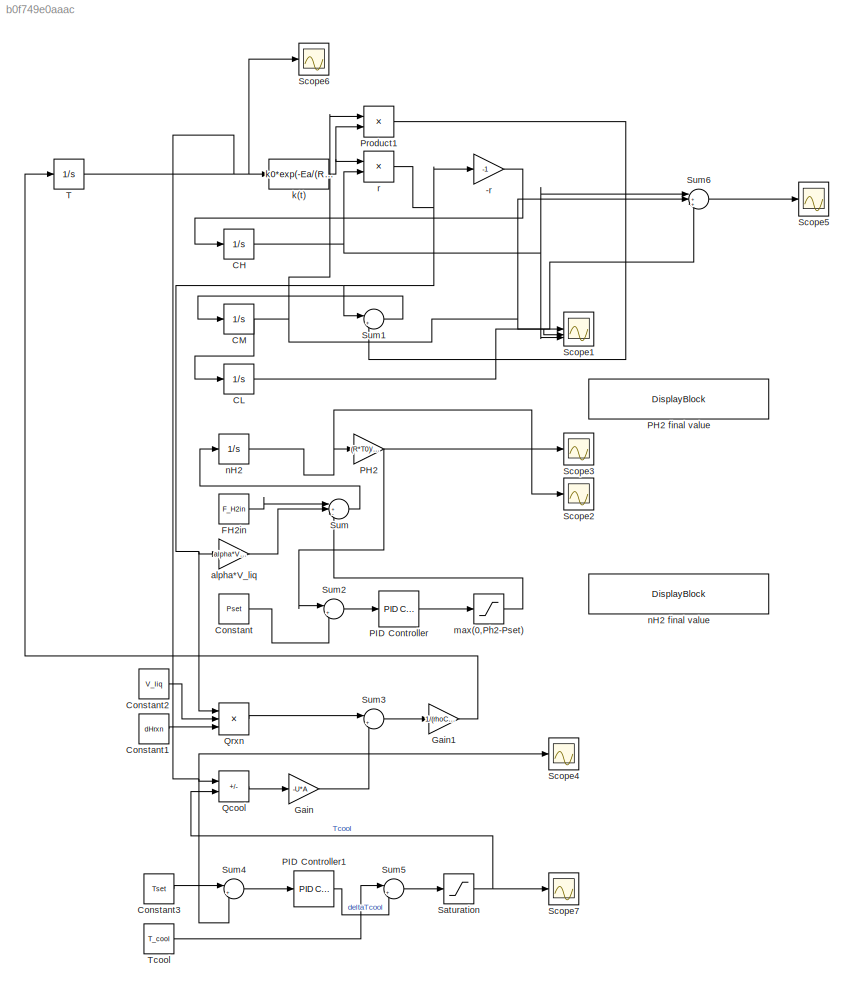
MODEL slx_b0f749e0aaac
KIND model
CONFIG AbsTol = auto
CONFIG EnableMultiTasking = off
CONFIG FixedStep = auto
CONFIG MaxStep = auto
CONFIG MinStep = auto
CONFIG RelTol = 1e-3
CONFIG SampleTimeConstraint = Unconstrained
CONFIG SolverName = VariableStepAuto
CONFIG StartTime = 0.0
CONFIG StopTime = 1000
BLOCK [Gain] -r
  Gain = -1
BLOCK [Integrator] CH
  InitialCondition = CH0
BLOCK [Integrator] CL
  InitialCondition = CL0
BLOCK [Integrator] CM
  InitialCondition = CM0
BLOCK [Constant] Constant
  Value = Pset
BLOCK [Constant] Constant1
  Value = dHrxn
BLOCK [Constant] Constant2
  Value = V_liq
BLOCK [Constant] Constant3
  Value = Tset
BLOCK [Constant] FH2in
  Value = F_H2in
BLOCK [Gain] Gain
  Gain = -U*A
BLOCK [Gain] Gain1
  Gain = 1/(rhoCp*V_liq)
BLOCK [Gain] PH2
  Gain = (R*T0)/V_gas
BLOCK [DisplayBlock] PH2 final value
  GridColor = [0.502, 0.502, 0.502]
  LabelPosition = Hide
  Transparency = 1
BLOCK [Reference] PID Controller  REF=slpidlib/PID Controller
  LibrarySourceBlock = simulink/Continuous/PID Controller
  SourceBlock = slpidlib/PID Controller
  SourceType = PID 1dof
BLOCK [Reference] PID Controller1  REF=slpidlib/PID Controller
  LibrarySourceBlock = simulink/Continuous/PID Controller
  SourceBlock = slpidlib/PID Controller
  SourceType = PID 1dof
BLOCK [Product] Product1
BLOCK [Sum] Qcool
  IconShape = rectangular
  Inputs = +-
BLOCK [Product] Qrxn
  Inputs = 3
BLOCK [Saturate] Saturation
  LowerLimit = 450
  UpperLimit = 600
BLOCK [Scope] Scope1
  ActiveDisplayYMaximum = 2026.48823667877
  ActiveDisplayYMinimum = -115.26738630932186
  DataLoggingVariableName = ScopeData1
  Floating = off
  GraphicalSettings = {"Style":{"BackgroundColor":[0.12941176470588237,0.12941176470588237,0.12941176470588237],"AxesColor":[0.07058823529411765,0.07058823529411765,0.07058823529411765],"LabelsColor":[0.8509803921568627,0.8509803921568627,0.8509803921568627],"PreserveColors":false,"Visible":[true,true,true],"LineStyle":["-","-","-"],"LineWidth":[1.5,1.5,1.5],"BarWidth":[0.9,0.9,0.9],"LineColor":["auto","auto","auto"],"...<+2160ch>
  MultipleDisplayCache = [{"MaxYLimMag":10,"MaxYLimReal":2026.48823667877,"MinYLimMag":0,"MinYLimReal":-115.26738630932186,"PlotAsMagnitudePhase":false,"ShowGrid":true,"ShowLegend":true,"Title":"%<SignalLabel>","YLabel":""}]
  NumInputPorts = 3
  ScopeFrameLocation = window
  ShowLegend = on
  WasSavedAsWebScope = on
  WindowPosition = [801.000000,328.000000,560.000000,420.000000,]
BLOCK [Scope] Scope2
  ActiveDisplayYMaximum = 22.227202454879869
  ActiveDisplayYMinimum = -4.503216513253486
  DataLoggingVariableName = ScopeData2
  Floating = off
  GraphicalSettings = {"Style":{"BackgroundColor":[0.12941176470588237,0.12941176470588237,0.12941176470588237],"AxesColor":[0.07058823529411765,0.07058823529411765,0.07058823529411765],"LabelsColor":[0.8509803921568627,0.8509803921568627,0.8509803921568627],"PreserveColors":false,"Visible":[true],"LineStyle":["-"],"LineWidth":[1.5],"BarWidth":[0.9],"LineColor":["auto"],"LineFaceAlpha":[1],"LineEdgeAlpha":[1],"Marker":...<+1987ch>
  MultipleDisplayCache = [{"MaxYLimMag":59.690599795351716,"MaxYLimReal":22.227202454879869,"MinYLimMag":0,"MinYLimReal":-4.503216513253486,"PlotAsMagnitudePhase":false,"ShowGrid":true,"ShowLegend":false,"Title":"%<SignalLabel>","YLabel":""}]
  NumInputPorts = 1
  ScopeFrameLocation = window
  Visible = on
  WasSavedAsWebScope = on
  WindowPosition = [680.000000,330.000000,560.000000,420.000000,]
BLOCK [Scope] Scope3
  ActiveDisplayYMaximum = 682252.73190292867
  ActiveDisplayYMinimum = -253622.65898233256
  DataLoggingVariableName = ScopeData3
  Floating = off
  GraphicalSettings = {"Style":{"BackgroundColor":[0.12941176470588237,0.12941176470588237,0.12941176470588237],"AxesColor":[0.07058823529411765,0.07058823529411765,0.07058823529411765],"LabelsColor":[0.8509803921568627,0.8509803921568627,0.8509803921568627],"PreserveColors":false,"Visible":[true],"LineStyle":["-"],"LineWidth":[1.5],"BarWidth":[0.9],"LineColor":["auto"],"LineFaceAlpha":[1],"LineEdgeAlpha":[1],"Marker":...<+1987ch>
  MultipleDisplayCache = [{"MaxYLimMag":763979.91092674376,"MaxYLimReal":682252.73190292867,"MinYLimMag":0,"MinYLimReal":-253622.65898233256,"PlotAsMagnitudePhase":false,"ShowGrid":true,"ShowLegend":false,"Title":"%<SignalLabel>","YLabel":""}]
  NumInputPorts = 1
  ScopeFrameLocation = window
  WasSavedAsWebScope = on
  WindowPosition = [680.000000,330.000000,560.000000,420.000000,]
BLOCK [Scope] Scope4
  ActiveDisplayYMaximum = 606.60340044600207
  ActiveDisplayYMinimum = 575.73029004029047
  DataLoggingVariableName = ScopeData4
  Floating = off
  GraphicalSettings = {"Style":{"BackgroundColor":[0.12941176470588237,0.12941176470588237,0.12941176470588237],"AxesColor":[0.07058823529411765,0.07058823529411765,0.07058823529411765],"LabelsColor":[0.8509803921568627,0.8509803921568627,0.8509803921568627],"PreserveColors":false,"Visible":[true],"LineStyle":["-"],"LineWidth":[1.5],"BarWidth":[0.9],"LineColor":["auto"],"LineFaceAlpha":[1],"LineEdgeAlpha":[1],"Marker":...<+2009ch>
  MultipleDisplayCache = [{"MaxYLimMag":602.30379903268044,"MaxYLimReal":606.60340044600207,"MinYLimMag":579.265808705876,"MinYLimReal":575.73029004029047,"PlotAsMagnitudePhase":false,"ShowGrid":true,"ShowLegend":false,"Title":"%<SignalLabel>","YLabel":""}]
  NumInputPorts = 1
  ScopeFrameLocation = window
  WasSavedAsWebScope = on
  WindowPosition = [680.000000,330.000000,560.000000,420.000000,]
BLOCK [Scope] Scope5
  ActiveDisplayYMaximum = 14909.091373153255
  ActiveDisplayYMinimum = 12051.812748407972
  DataLoggingVariableName = ScopeData5
  Floating = off
  GraphicalSettings = {"AxesScalingProperties":{"AlignXAxis":"Center","AlignYAxis":"Center","AutoScaleXAxisLimits":false,"AxesScaling":"Manual","AxesScalingNumUpdates":10,"ExpandOnly":true,"ScaleAxesLimitsAtStop":false,"XAxisDataRange":100,"YAxisDataRange":80},"DisplayProperties":{"ColorOrder":["auto","auto","auto","auto","auto","auto","auto","auto","auto","auto","auto","auto","auto","auto","auto","auto","auto","auto",...<+1998ch>
  MultipleDisplayCache = [{"MaxYLimMag":15184.713523229066,"MaxYLimReal":14909.091373153255,"MinYLimMag":0,"MinYLimReal":12051.812748407972,"PlotAsMagnitudePhase":false,"ShowGrid":true,"ShowLegend":false,"Title":"%<SignalLabel>","YLabel":""}]
  NumInputPorts = 1
  ScopeFrameLocation = window
  WasSavedAsWebScope = on
  WindowPosition = [680.000000,330.000000,560.000000,420.000000,]
BLOCK [Scope] Scope6
  ActiveDisplayYMaximum = 766.51149347424075
  ActiveDisplayYMinimum = 376.16740458522753
  DataLoggingVariableName = ScopeData6
  Floating = off
  GraphicalSettings = {"AxesScalingProperties":{"AlignXAxis":"Center","AlignYAxis":"Center","AutoScaleXAxisLimits":false,"AxesScaling":"Manual","AxesScalingNumUpdates":10,"ExpandOnly":true,"ScaleAxesLimitsAtStop":false,"XAxisDataRange":100,"YAxisDataRange":80},"DisplayProperties":{"ColorOrder":["auto","auto","auto","auto","auto","auto","auto","auto","auto","auto","auto","auto","auto","auto","auto","auto","auto","auto",...<+1958ch>
  MultipleDisplayCache = [{"MaxYLimMag":10,"MaxYLimReal":766.51149347424075,"MinYLimMag":0,"MinYLimReal":376.16740458522753,"PlotAsMagnitudePhase":false,"ShowGrid":true,"ShowLegend":true,"Title":"%<SignalLabel>","YLabel":""}]
  NumInputPorts = 1
  ScopeFrameLocation = window
  ShowLegend = on
  WasSavedAsWebScope = on
  WindowPosition = [680.000000,330.000000,560.000000,420.000000,]
BLOCK [Scope] Scope7
  ActiveDisplayYMaximum = 754.1193768014042
  ActiveDisplayYMinimum = 344.83039147979025
  DataLoggingVariableName = ScopeData7
  Floating = off
  GraphicalSettings = {"AxesScalingProperties":{"AlignXAxis":"Center","AlignYAxis":"Center","AutoScaleXAxisLimits":false,"AxesScaling":"Manual","AxesScalingNumUpdates":10,"ExpandOnly":true,"ScaleAxesLimitsAtStop":false,"XAxisDataRange":100,"YAxisDataRange":80},"DisplayProperties":{"ColorOrder":["auto","auto","auto","auto","auto","auto","auto","auto","auto","auto","auto","auto","auto","auto","auto","auto","auto","auto",...<+1982ch>
  MultipleDisplayCache = [{"MaxYLimMag":618.75,"MaxYLimReal":754.1193768014042,"MinYLimMag":431.25,"MinYLimReal":344.83039147979025,"PlotAsMagnitudePhase":false,"ShowGrid":true,"ShowLegend":true,"Title":"%<SignalLabel>","YLabel":""}]
  NumInputPorts = 1
  ScopeFrameLocation = window
  ShowLegend = on
  WasSavedAsWebScope = on
  WindowPosition = [680.000000,330.000000,560.000000,420.000000,]
BLOCK [Sum] Sum
  Inputs = |+--
BLOCK [Sum] Sum1
  Inputs = |+-
BLOCK [Sum] Sum2
  Inputs = |+-
BLOCK [Sum] Sum3
  Inputs = |+-
BLOCK [Sum] Sum4
  Inputs = |+-
BLOCK [Sum] Sum5
  Inputs = |+-
BLOCK [Sum] Sum6
  Inputs = |+++
BLOCK [Integrator] T
  InitialCondition = T0
BLOCK [Constant] Tcool
  Value = T_cool
BLOCK [Gain] alpha*V_liq
  Gain = alpha*V_liq
BLOCK [Fcn] k(t)
  Expr = k0*exp(-Ea/(R*u))
BLOCK [Saturate] max(0,Ph2-Pset)
  LowerLimit = 0
  UpperLimit = inf
BLOCK [Integrator] nH2
  InitialCondition = nH2_0
  LimitOutput = on
  LowerSaturationLimit = 0
BLOCK [DisplayBlock] nH2 final value
  GridColor = [0.502, 0.502, 0.502]
  LabelPosition = Hide
  Transparency = 1
BLOCK [Product] r
LINE -r:1 -> CH:1
NET CH:1 -> Scope1:3, Sum6:1, r:2
NET CL:1 -> Scope1:2, Sum6:3
NET CM:1 -> CL:1, Product1:1, Scope1:1, Sum6:2
LINE Constant1:1 -> Qrxn:3
LINE Constant2:1 -> Qrxn:2
LINE Constant3:1 -> Sum4:1
LINE Constant:1 -> Sum2:2
LINE FH2in:1 -> Sum:1
LINE Gain1:1 -> T:1
LINE Gain:1 -> Sum3:2
NET PH2:1 -> Scope3:1, Sum2:1
LINE PID Controller1:1 -> Sum5:2
LINE PID Controller:1 -> max(0,Ph2-Pset):1
LINE Product1:1 -> Sum1:2
LINE Qcool:1 -> Gain:1
LINE Qrxn:1 -> Sum3:1
NET Saturation:1 -> Qcool:2, Scope7:1
LINE Sum1:1 -> CM:1
LINE Sum2:1 -> PID Controller:1
LINE Sum3:1 -> Gain1:1
LINE Sum4:1 -> PID Controller1:1
LINE Sum5:1 -> Saturation:1
LINE Sum6:1 -> Scope5:1
LINE Sum:1 -> nH2:1
NET T:1 -> Qcool:1, Scope4:1, Scope6:1, Sum4:2, k(t):1
LINE Tcool:1 -> Sum5:1
LINE alpha*V_liq:1 -> Sum:2
NET k(t):1 -> Product1:2, r:1
LINE max(0,Ph2-Pset):1 -> Sum:3
NET nH2:1 -> PH2:1, Scope2:1
NET r:1 -> -r:1, Qrxn:1, Sum1:1, alpha*V_liq:1
note: NET lines group one-source signal fan-out (src -> all destinations, sorted); 1:1 wires keep LINE
